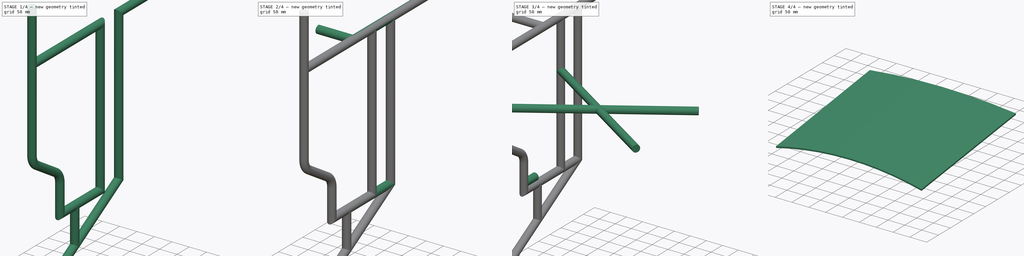
[diagram: build sequence overview — one tinted view per stage of 4, left to right]
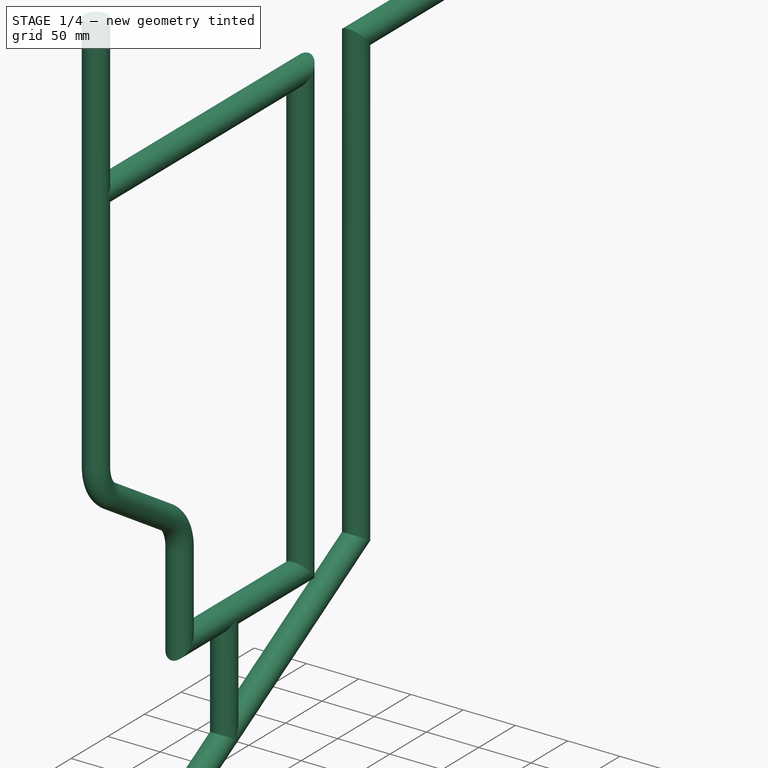
[diagram: stage 1 of 4 — iso view after this stage's code; geometry added in this stage tinted green]
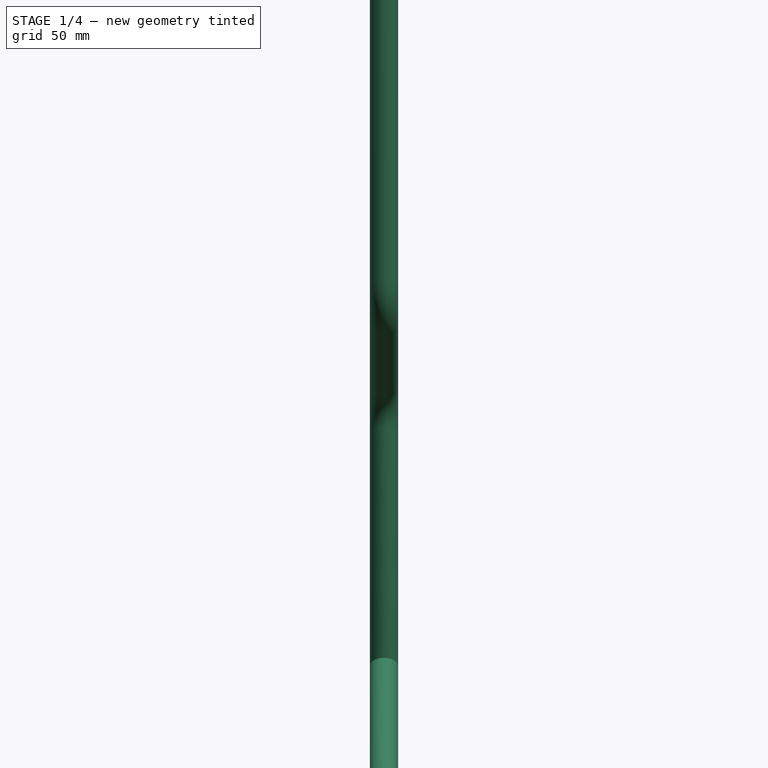
[diagram: stage 1 of 4 — front view after this stage's code; geometry added in this stage tinted green]
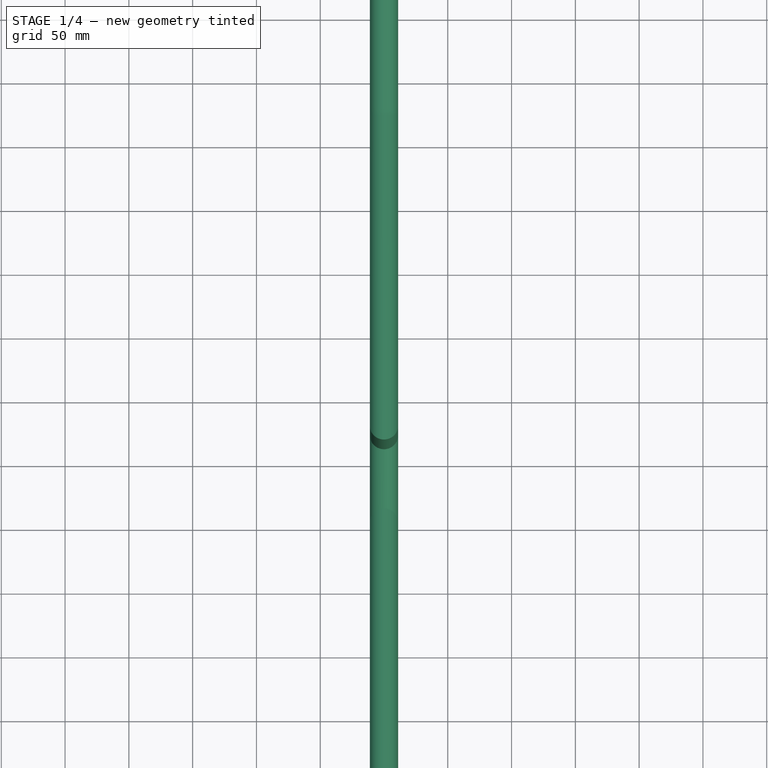
[diagram: stage 1 of 4 — top view after this stage's code; geometry added in this stage tinted green]
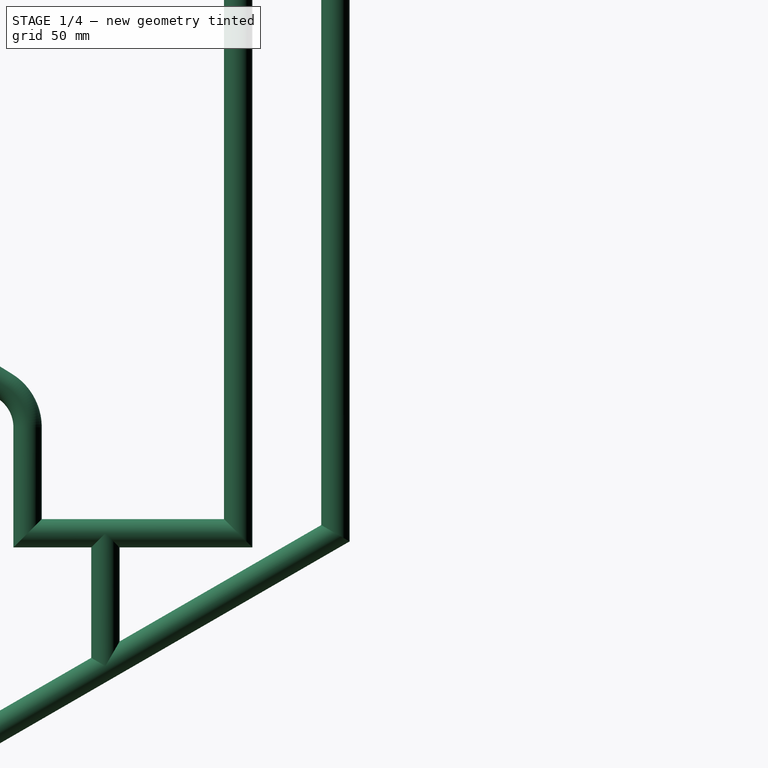
[diagram: stage 1 of 4 — right view after this stage's code; geometry added in this stage tinted green]
FCSTD DOCUMENT  (FreeCAD 0.21R33345 (Git))
Label: Backrest
License: All rights reserved
LicenseURL: http://en.wikipedia.org/wiki/All_rights_reserved
objects: Sketcher::SketchObject×11, PartDesign::Plane×8, PartDesign::AdditivePipe×7, PartDesign::SubShapeBinder×4, PartDesign::Pad×3, PartDesign::Body×2, PartDesign::Mirrored×1, PartDesign::AdditiveLoft×1
note: 48 computed .brp shape members not serialized (recipe doc carries the construction recipe); baked Part::Feature solids carry a one-line shape summary decoded from their .brp

FEATURE [Sketcher::SketchObject] Sketch
  FullyConstrained = true
  MapMode = 5
  Placement = pos=(0,0,0) rot=(0.57735,0.57735,0.57735;2.0944rad)
  Support = -> [YZ_Plane]
  sketch-geometry (25):
    g0: LineSegment StartX=0 StartY=0 StartZ=0 EndX=0 EndY=-88.9 EndZ=0
    g1: ArcOfCircle CenterX=-38.1 CenterY=-88.9 CenterZ=0 NormalX=0 NormalY=0 NormalZ=1 AngleXU=0 Radius=38.1 StartAngle=4.87984 EndAngle=6.28319
    g2: LineSegment StartX=-31.75 StartY=-126.467 StartZ=0 EndX=-182.018 EndY=-151.867 EndZ=0
    g3: ArcOfCircle CenterX=-188.368 CenterY=-114.3 CenterZ=0 NormalX=0 NormalY=0 NormalZ=1 AngleXU=0 Radius=38.1 StartAngle=4.71239 EndAngle=4.87984
    g4: LineSegment StartX=-188.368 StartY=-152.4 StartZ=0 EndX=-431.8 EndY=-152.4 EndZ=0
    g5: LineSegment StartX=-431.8 StartY=-152.4 StartZ=0 EndX=-431.8 EndY=-584.2 EndZ=0
    g6: LineSegment StartX=-431.8 StartY=-584.2 StartZ=0 EndX=-783.753 EndY=-787.4 EndZ=0
    g7: LineSegment StartX=-783.753 StartY=-787.4 StartZ=0 EndX=-731.629 EndY=-930.609 EndZ=0
    g8: LineSegment StartX=-431.8 StartY=-152.4 StartZ=0 EndX=-508 EndY=-152.4 EndZ=0
    g9: LineSegment StartX=-508 StartY=-152.4 StartZ=0 EndX=-508 EndY=-584.2 EndZ=0
    g10: LineSegment StartX=-431.8 StartY=-584.2 StartZ=0 EndX=-508 EndY=-584.2 EndZ=0
    g11: LineSegment StartX=-508 StartY=-152.4 StartZ=0 EndX=-787.4 EndY=-152.4 EndZ=0
    g12: LineSegment StartX=-787.4 StartY=-152.4 StartZ=0 EndX=-787.4 EndY=-387.868 EndZ=0
    g13: LineSegment StartX=-673.1 StartY=-501.132 StartZ=0 EndX=-673.1 EndY=-584.2 EndZ=0
    g14: LineSegment StartX=-612.091 StartY=-584.2 StartZ=0 EndX=-612.091 EndY=-688.291 EndZ=0
    g15: LineSegment StartX=-508 StartY=-584.2 StartZ=0 EndX=-612.091 EndY=-584.2 EndZ=0
    g16: LineSegment StartX=-612.091 StartY=-584.2 StartZ=0 EndX=-673.1 EndY=-584.2 EndZ=0
    g17: ArcOfCircle CenterX=-749.3 CenterY=-387.868 CenterZ=0 NormalX=0 NormalY=0 NormalZ=1 AngleXU=0 Radius=38.1 StartAngle=3.14159 EndAngle=4.15753
    g18: LineSegment StartX=-769.372 StartY=-420.252 StartZ=0 EndX=-691.128 EndY=-468.748 EndZ=0
    g19: ArcOfCircle CenterX=-711.2 CenterY=-501.132 CenterZ=0 NormalX=0 NormalY=0 NormalZ=1 AngleXU=0 Radius=38.1 StartAngle=0 EndAngle=1.01594
    g20: LineSegment StartX=-769.372 StartY=-420.252 StartZ=0 EndX=-787.4 EndY=-387.868 EndZ=0
    g21: LineSegment StartX=-673.1 StartY=-501.132 StartZ=0 EndX=-691.128 EndY=-468.748 EndZ=0
    g22: LineSegment StartX=-778.386 StartY=-404.06 StartZ=0 EndX=-782.589 EndY=-406.4 EndZ=0
    g23: LineSegment StartX=-682.114 StartY=-484.94 StartZ=0 EndX=-677.911 EndY=-482.6 EndZ=0
    g24: LineSegment StartX=-787.4 StartY=-152.4 StartZ=0 EndX=-787.4 EndY=0 EndZ=0
  constraints (67):
    c: Coincident(g-1,g0)
    c: PointOnObject(g0,g-2)
    c: Tangent(g0,g1) = 1.5708
    c: Tangent(g2,g3) = 1.5708
    c: Horizontal(g4)
    c: Coincident(g4,g5)
    c: Vertical(g5)
    c: Coincident(g5,g6)
    c: Coincident(g6,g7)
    c: Coincident(g8,g4)
    c: Horizontal(g8)
    c: Coincident(g9,g8)
    c: Vertical(g9)
    c: Coincident(g10,g5)
    c: Coincident(g10,g9)
    c: Horizontal(g10)
    c: Coincident(g11,g8)
    c: Horizontal(g11)
    c: Coincident(g11,g12)
    c: Vertical(g12)
    c: Vertical(g13)
    c: PointOnObject(g14,g6)
    c: Vertical(g14)
    c: Tangent(g3,g4) = 1.5708
    c: Tangent(g1,g2) = 1.5708
    c: DistanceY(g0,g0) = 88.9
    c: Radius(g1) = 38.1
    c: Distance(g2) = 152.4
    c: DistanceX(g8,g8) = 76.2
    c: Angle(g10,g6) = 0.523599
    c: Angle(g7,g6) = 1.74533
    c: Distance(g7) = 152.4
    c: Distance(g6) = 406.4
    c: DistanceX(g4,g0) = 431.8
    c: DistanceY(g3,g0) = 152.4
    c: Equal(g1,g3)
    c: DistanceY(g9,g8) = 431.8
    c: DistanceX(g13,g5) = 241.3
    c: Coincident(g15,g9)
    c: Coincident(g15,g14)
    c: Horizontal(g15)
    c: Coincident(g16,g14)
    c: Coincident(g16,g13)
    c: Horizontal(g16)
    c: Equal(g15,g14)
    c: Tangent(g12,g17) = -1.5708
    c: Tangent(g19,g18) = 1.5708
    c: Tangent(g19,g13) = 1.5708
    c: Tangent(g17,g18) = -1.5708
    c: Radius(g17) = 38.1
    c: Radius(g19) = 38.1
    c: Coincident(g20,g17)
    c: Coincident(g20,g12)
    c: Coincident(g21,g13)
    c: Coincident(g21,g18)
    c: PointOnObject(g22,g20)
    c: PointOnObject(g23,g21)
    c: PointOnObject(g22,g17)
    c: PointOnObject(g23,g19)
    c: Symmetric(g18,g13,g23)
    c: Symmetric(g12,g17,g22)
    c: DistanceY(g22,g11) = 254
    c: DistanceY(g23,g22) = 76.2
    c: DistanceX(g11,g0) = 787.4
    c: Coincident(g24,g11)
    c: Vertical(g24)
    c: PointOnObject(g24,g-1)
FEATURE [Sketcher::SketchObject] Sketch001
  ExternalGeometry = -> [Sketch]
  FullyConstrained = true
  MapMode = 5
  Support = -> [XY_Plane]
  sketch-geometry (1):
    g0: Circle CenterX=0 CenterY=-787.4 CenterZ=0 NormalX=0 NormalY=0 NormalZ=1 AngleXU=0 Radius=11.1125
  constraints (2):
    c: Coincident(g0,g-3)
    c: Diameter(g0) = 22.225
FEATURE [PartDesign::AdditivePipe] AdditivePipe
  AuxilleryCurvelinear = true
  AuxillerySpineTangent = false
  Binormal = (0,0,0)
  Mode = 0
  Profile = -> Sketch001
  Refine = true
  Spine = -> Sketch [Edge16,Edge15,Edge14,Edge13,Edge12,Edge11,Edge10,Edge9]
  SpineTangent = false
  Transformation = 0
  Transition = 1
FEATURE [PartDesign::AdditivePipe] AdditivePipe001
  AuxilleryCurvelinear = true
  AuxillerySpineTangent = false
  BaseFeature = -> AdditivePipe
  Binormal = (0,0,0)
  Mode = 0
  Profile = -> Sketch001
  Refine = true
  Spine = -> Sketch [Edge16,Edge17,Edge18,Edge19]
  SpineTangent = false
  Transformation = 0
  Transition = 1
FEATURE [Sketcher::SketchObject] Sketch002
  FullyConstrained = true
  MapMode = 5
  Support = -> [XY_Plane]
  sketch-geometry (1):
    g0: Circle CenterX=0 CenterY=0 CenterZ=0 NormalX=0 NormalY=0 NormalZ=1 AngleXU=0 Radius=11.1125
  constraints (2):
    c: Coincident(g0,g-1)
    c: Diameter(g0) = 22.225
FEATURE [PartDesign::AdditivePipe] AdditivePipe002
  AuxilleryCurvelinear = true
  AuxillerySpineTangent = false
  BaseFeature = -> AdditivePipe001
  Binormal = (0,0,0)
  Mode = 0
  Profile = -> Sketch002
  Refine = true
  Spine = -> Sketch [Edge1,Edge2,Edge3,Edge4,Edge5,Edge6,Edge7,Edge8]
  SpineTangent = false
  Transformation = 0
  Transition = 1
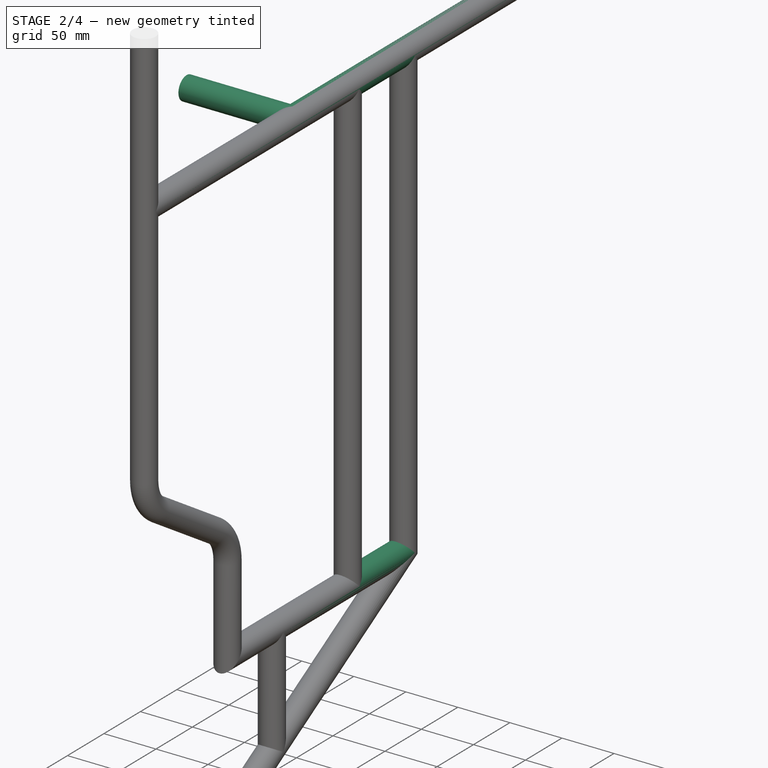
[diagram: stage 2 of 4 — iso view after this stage's code; geometry added in this stage tinted green]
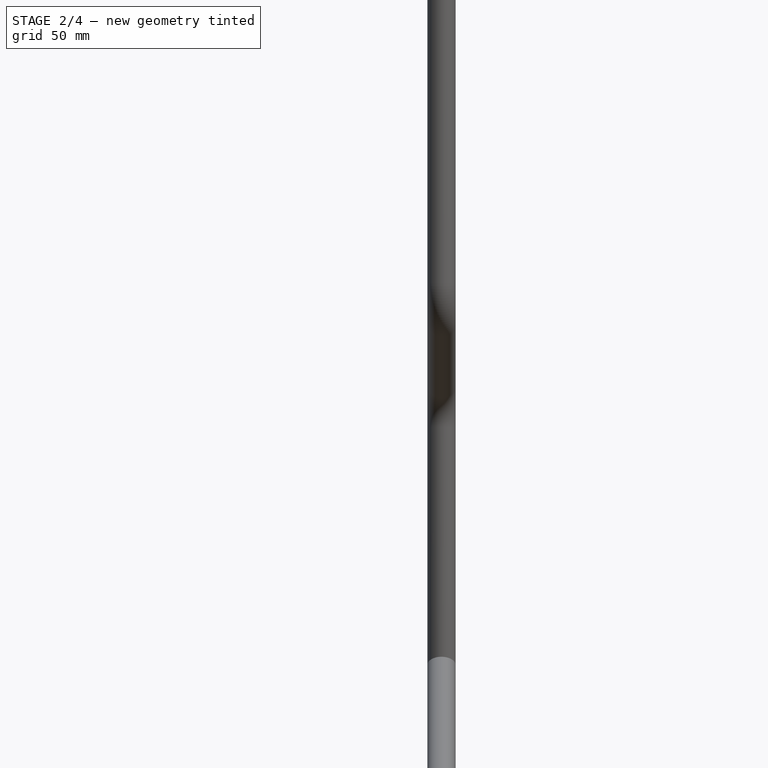
[diagram: stage 2 of 4 — front view after this stage's code; geometry added in this stage tinted green]
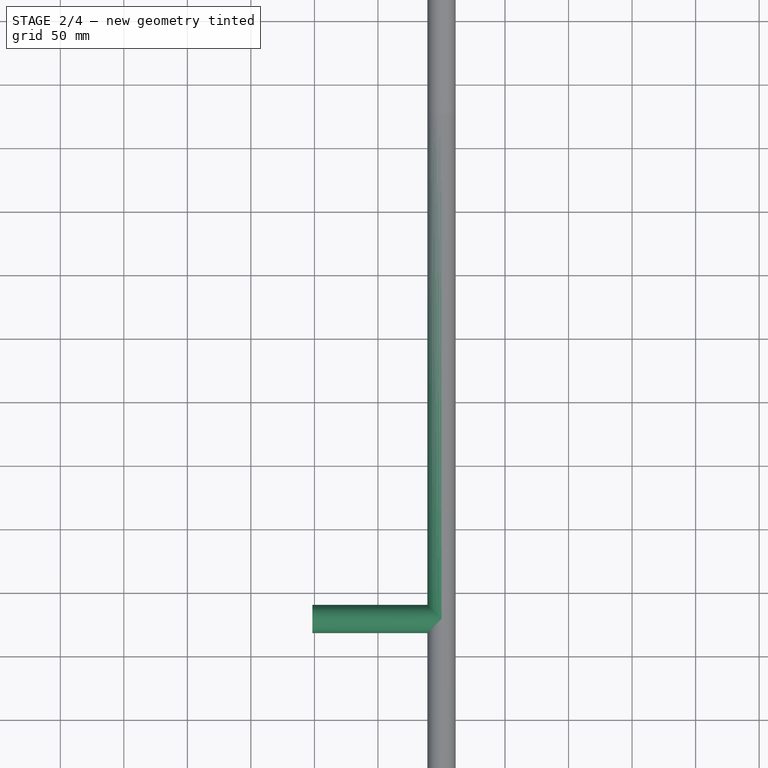
[diagram: stage 2 of 4 — top view after this stage's code; geometry added in this stage tinted green]
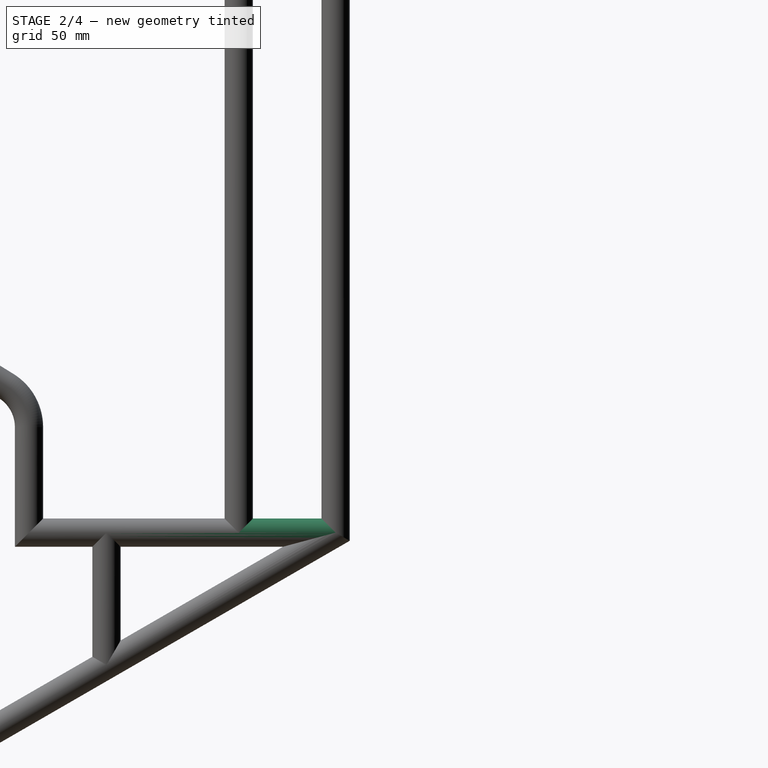
[diagram: stage 2 of 4 — right view after this stage's code; geometry added in this stage tinted green]
FEATURE [PartDesign::AdditivePipe] AdditivePipe003
  AuxilleryCurvelinear = true
  AuxillerySpineTangent = false
  BaseFeature = -> AdditivePipe002
  Binormal = (0,0,0)
  Mode = 0
  Profile = -> Sketch001
  Refine = true
  Spine = -> Sketch [Edge16,Edge17,Edge21]
  SpineTangent = false
  Transformation = 0
  Transition = 1
FEATURE [PartDesign::AdditivePipe] AdditivePipe004
  AuxilleryCurvelinear = true
  AuxillerySpineTangent = false
  BaseFeature = -> AdditivePipe003
  Binormal = (0,0,0)
  Mode = 0
  Profile = -> Sketch001
  Refine = true
  Spine = -> Sketch [Edge16,Edge15,Edge14,Edge13,Edge12,Edge11,Edge10,Edge19,Edge20]
  SpineTangent = false
  Transformation = 0
  Transition = 1
FEATURE [Sketcher::SketchObject] Sketch003
  ExternalGeometry = -> [AdditivePipe004]
  FullyConstrained = true
  MapMode = 5
  Placement = pos=(0,0,0) rot=(0.57735,0.57735,0.57735;2.0944rad)
  Support = -> [YZ_Plane]
  sketch-geometry (3):
    g0: LineSegment StartX=-508 StartY=-152.4 StartZ=0 EndX=-787.4 EndY=-152.4 EndZ=0
    g1: Circle CenterX=-584.2 CenterY=-152.4 CenterZ=0 NormalX=0 NormalY=0 NormalZ=1 AngleXU=0 Radius=11.1125
    g2: Circle CenterX=-584.2 CenterY=-152.4 CenterZ=0 NormalX=0 NormalY=0 NormalZ=1 AngleXU=0 Radius=9.525
  constraints (7):
    c: Coincident(g0,g-3)
    c: Coincident(g0,g-4)
    c: PointOnObject(g1,g0)
    c: Coincident(g2,g1)
    c: Diameter(g2) = 19.05
    c: Diameter(g1) = 22.225
    c: DistanceX(g0,g1) = 203.2
FEATURE [PartDesign::Pad] Pad
  BaseFeature = -> AdditivePipe004
  Direction = (1,-2e-16,3e-16)
  Length = 101.6
  Length2 = 10
  Profile = -> Sketch003
  ReferenceAxis = -> Sketch003 [N_Axis]
  Refine = true
  Reversed = true
  Type = 0
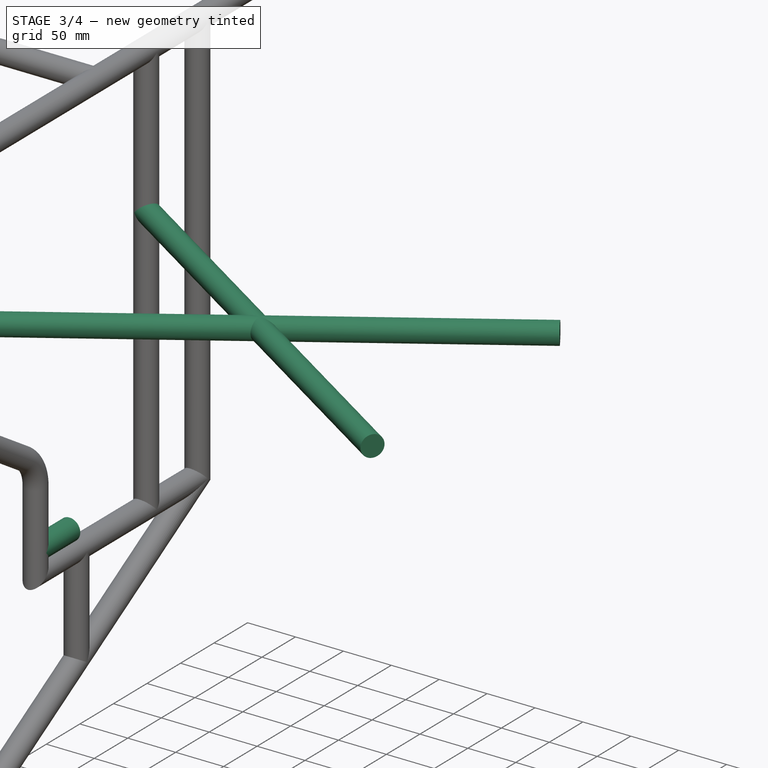
[diagram: stage 3 of 4 — iso view after this stage's code; geometry added in this stage tinted green]
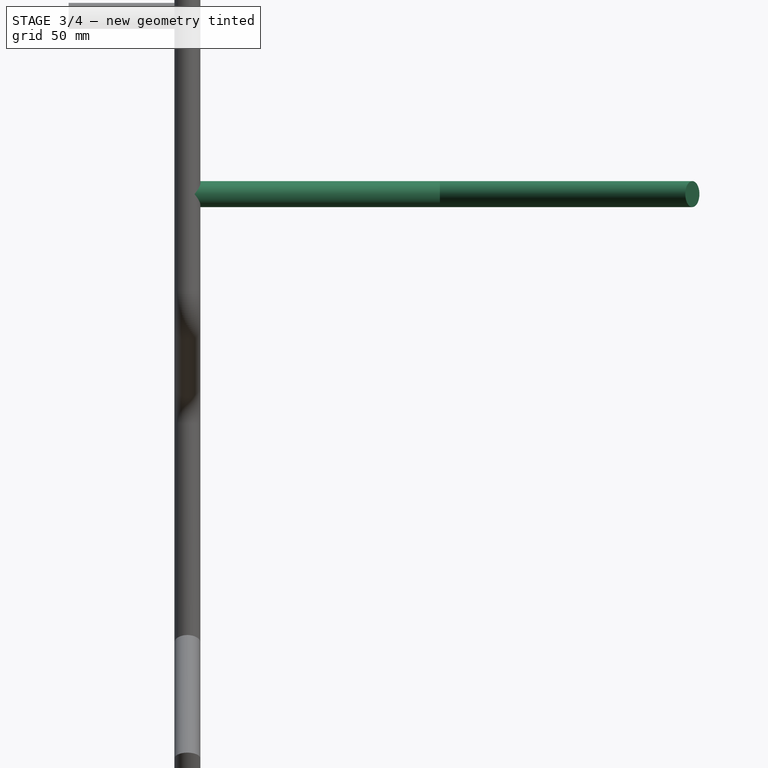
[diagram: stage 3 of 4 — front view after this stage's code; geometry added in this stage tinted green]
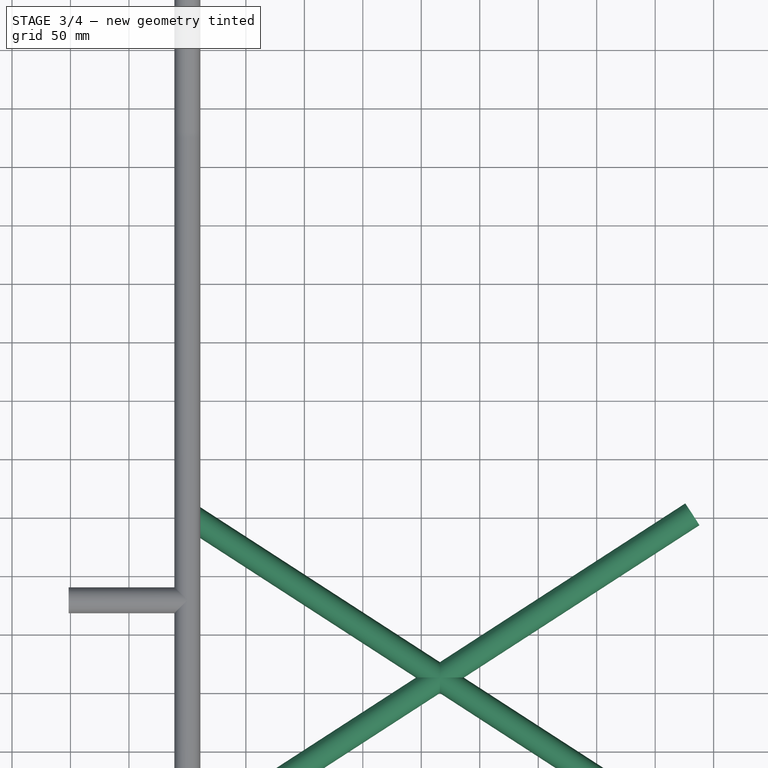
[diagram: stage 3 of 4 — top view after this stage's code; geometry added in this stage tinted green]
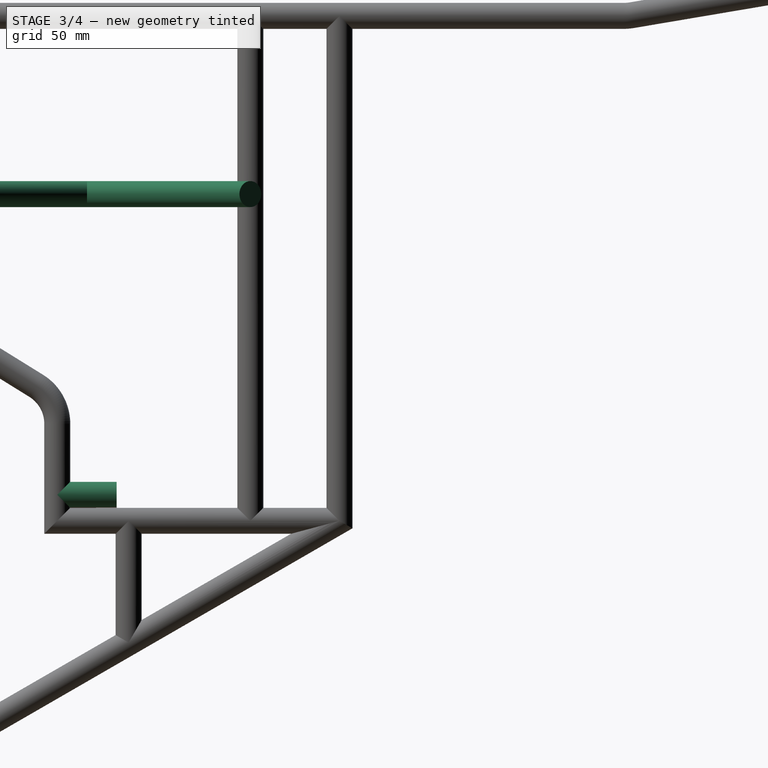
[diagram: stage 3 of 4 — right view after this stage's code; geometry added in this stage tinted green]
FEATURE [PartDesign::Plane] DatumPlane
  AttachmentOffset = pos=(0,0,215.9) rot=(0,0,1;0rad)
  Length = 1001.28
  MapMode = 5
  Placement = pos=(215.9,-4.79e-14,4.79e-14) rot=(0.57735,0.57735,0.57735;2.0944rad)
  ResizeMode = 0
  Support = -> [YZ_Plane]
  Width = 1137.15
FEATURE [PartDesign::Plane] DatumPlane001
  AttachmentOffset = pos=(0,0,-304.8) rot=(0,0,1;0rad)
  Length = 779.628
  MapMode = 5
  Placement = pos=(0,0,-304.8) rot=(0,0,1;0rad)
  ResizeMode = 0
  Support = -> [XY_Plane]
  Width = 968.14
FEATURE [Sketcher::SketchObject] Sketch004
  ExternalGeometry = -> [Pad]
  FullyConstrained = true
  MapMode = 5
  Placement = pos=(0,0,-304.8) rot=(0,0,1;0rad)
  Support = -> [DatumPlane001]
  sketch-geometry (2):
    g0: LineSegment StartX=0 StartY=-508 StartZ=0 EndX=431.8 EndY=-787.4 EndZ=0
    g1: LineSegment StartX=0 StartY=-787.4 StartZ=0 EndX=431.8 EndY=-508 EndZ=0
  constraints (7):
    c: PointOnObject(g0,g-2)
    c: Horizontal(g-4,g0)
    c: DistanceY(g-4,g0) = 279.4
    c: Coincident(g1,g-4)
    c: Vertical(g1,g0)
    c: Horizontal(g0,g1)
    c: DistanceX(g0,g1) = 431.8
FEATURE [PartDesign::Plane] DatumPlane002
  AttachmentOffset = pos=(0,0,-514.31) rot=(0,0,1;0rad)
  Length = 1235.79
  MapMode = 7
  Placement = pos=(431.799,-787.4,-304.8) rot=(-0.359036,0.65996,0.65996;3.831rad)
  ResizeMode = 0
  Support = -> [Sketch004]
  Width = 1158.81
FEATURE [PartDesign::Plane] DatumPlane003
  AttachmentOffset = pos=(0,0,-514.31) rot=(0,0,1;0rad)
  Length = 1235.79
  MapMode = 7
  Placement = pos=(431.799,-508,-304.8) rot=(0.792571,-0.43118,-0.43118;1.8012rad)
  ResizeMode = 0
  Support = -> [Sketch004]
  Width = 1158.81
FEATURE [Sketcher::SketchObject] Sketch005
  FullyConstrained = true
  MapMode = 5
  Placement = pos=(431.799,-508,-304.8) rot=(0.792571,-0.43118,-0.43118;1.8012rad)
  Support = -> [DatumPlane003]
  sketch-geometry (1):
    g0: Circle CenterX=0 CenterY=0 CenterZ=0 NormalX=0 NormalY=0 NormalZ=1 AngleXU=0 Radius=11.1125
  constraints (2):
    c: Coincident(g0,g-1)
    c: Diameter(g0) = 22.225
FEATURE [Sketcher::SketchObject] Sketch006
  FullyConstrained = true
  MapMode = 5
  Placement = pos=(431.799,-787.4,-304.8) rot=(-0.359036,0.65996,0.65996;3.831rad)
  Support = -> [DatumPlane002]
  sketch-geometry (1):
    g0: Circle CenterX=0 CenterY=0 CenterZ=0 NormalX=0 NormalY=0 NormalZ=1 AngleXU=0 Radius=11.1125
  constraints (2):
    c: Coincident(g0,g-1)
    c: Diameter(g0) = 22.225
FEATURE [PartDesign::AdditivePipe] AdditivePipe005
  AuxilleryCurvelinear = true
  AuxillerySpineTangent = false
  BaseFeature = -> Pad
  Binormal = (0,0,0)
  Mode = 0
  Profile = -> Sketch006
  Refine = true
  Spine = -> Sketch004 [Edge1]
  SpineTangent = false
  Transformation = 0
  Transition = 0
FEATURE [PartDesign::AdditivePipe] AdditivePipe006
  AuxilleryCurvelinear = true
  AuxillerySpineTangent = false
  BaseFeature = -> AdditivePipe005
  Binormal = (0,0,0)
  Mode = 0
  Profile = -> Sketch005
  Refine = true
  Spine = -> Sketch004 [Edge2]
  SpineTangent = false
  Transformation = 0
  Transition = 0
FEATURE [PartDesign::Plane] DatumPlane004
  AttachmentOffset = pos=(0,0,-61.01) rot=(0,0,1;0rad)
  Length = 791.104
  MapMode = 7
  Placement = pos=(-1.97e-14,-673.101,-584.2) rot=(0,0.707107,0.707107;3.14159rad)
  ResizeMode = 0
  Support = -> [Sketch]
  Width = 1115.49
FEATURE [Sketcher::SketchObject] Sketch007
  FullyConstrained = true
  MapMode = 5
  Placement = pos=(-1.97e-14,-673.101,-584.2) rot=(0,0.707107,0.707107;3.14159rad)
  Support = -> [DatumPlane004]
  sketch-geometry (3):
    g0: Circle CenterX=0 CenterY=0 CenterZ=0 NormalX=0 NormalY=0 NormalZ=1 AngleXU=0 Radius=11.1125
    g1: Circle CenterX=0 CenterY=22.225 CenterZ=0 NormalX=0 NormalY=0 NormalZ=1 AngleXU=0 Radius=9.525
    g2: Circle CenterX=0 CenterY=22.225 CenterZ=0 NormalX=0 NormalY=0 NormalZ=1 AngleXU=0 Radius=11.1125
  constraints (7):
    c: Coincident(g0,g-1)
    c: Diameter(g0) = 22.225
    c: PointOnObject(g1,g-2)
    c: Coincident(g2,g1)
    c: Diameter(g2) = 22.225
    c: Diameter(g1) = 19.05
    c: Tangent(g2,g0)
FEATURE [PartDesign::Pad] Pad001
  BaseFeature = -> AdditivePipe006
  Direction = (2e-16,1,-2e-16)
  Length = 50.8
  Length2 = 10
  Profile = -> Sketch007
  ReferenceAxis = -> Sketch007 [N_Axis]
  Refine = true
  Type = 0
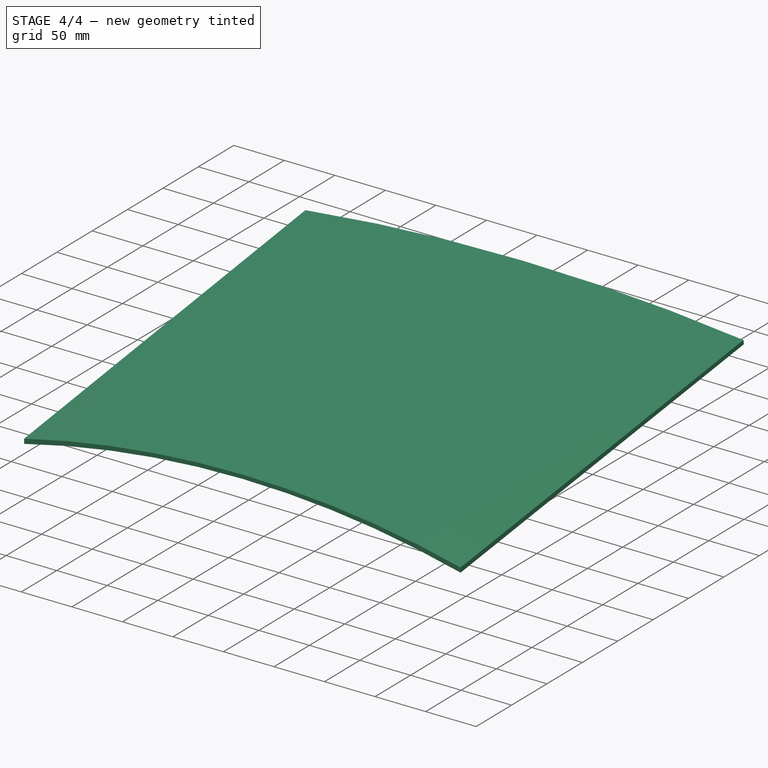
[diagram: stage 4 of 4 — iso view after this stage's code; geometry added in this stage tinted green]
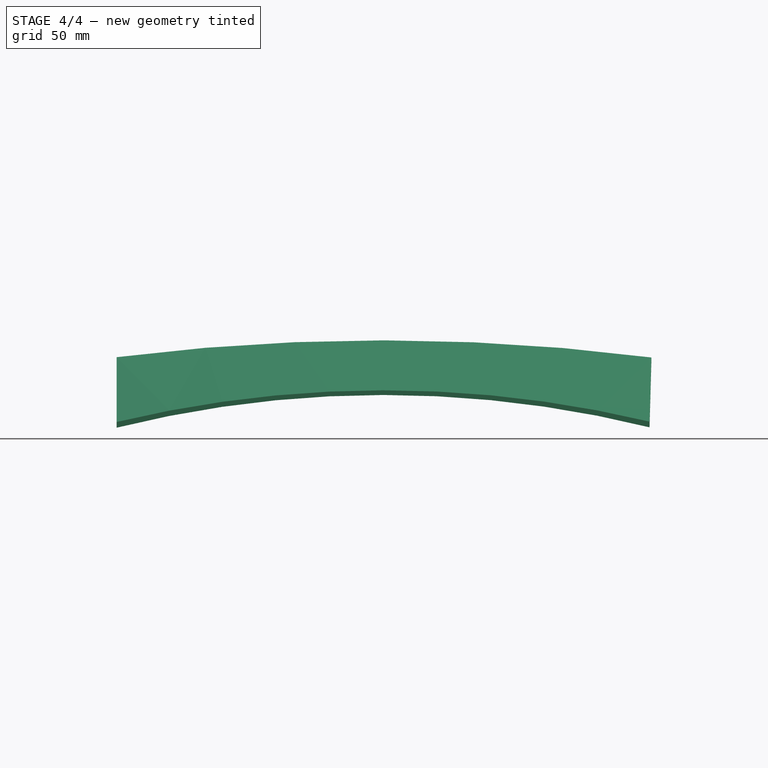
[diagram: stage 4 of 4 — front view after this stage's code; geometry added in this stage tinted green]
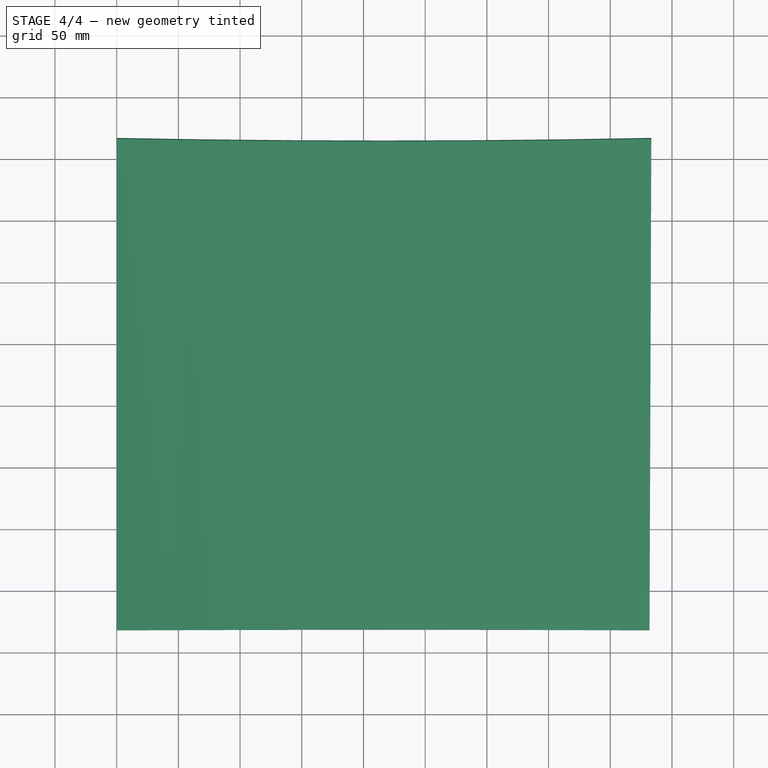
[diagram: stage 4 of 4 — top view after this stage's code; geometry added in this stage tinted green]
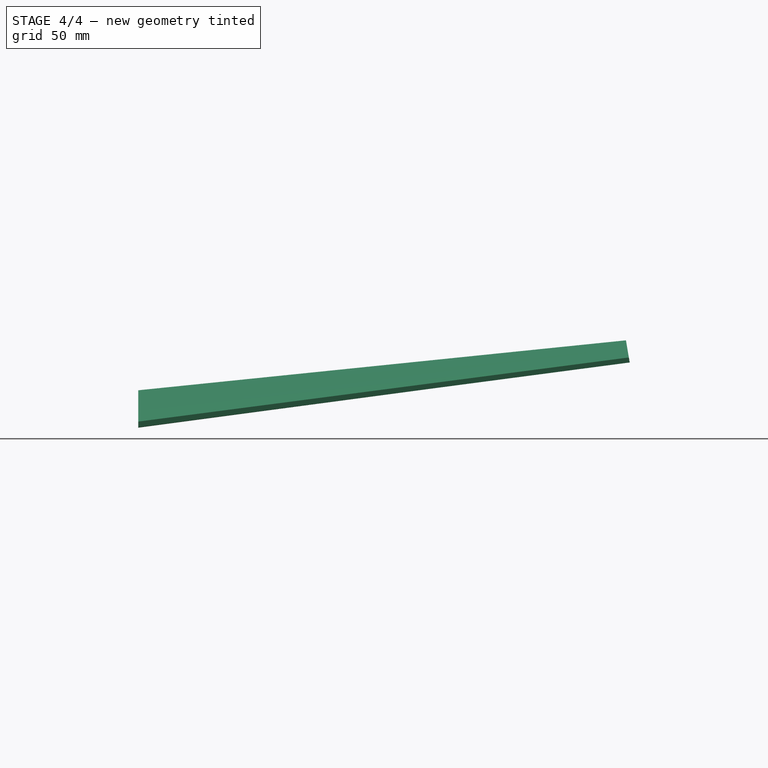
[diagram: stage 4 of 4 — right view after this stage's code; geometry added in this stage tinted green]
FEATURE [PartDesign::Plane] DatumPlane005
  AttachmentOffset = pos=(0,0,0) rot=(1,0,0;1.5708rad)
  Length = 791.104
  MapMode = 7
  Placement = pos=(-7.9e-14,-508,-152.4) rot=(1,0,0;1.5708rad)
  ResizeMode = 0
  Support = -> [Sketch]
  Width = 1115.49
FEATURE [PartDesign::Mirrored] Mirrored
  BaseFeature = -> Pad001
  MirrorPlane = -> DatumPlane
  Originals = -> [AdditivePipe,AdditivePipe001,AdditivePipe002,AdditivePipe003,AdditivePipe004,Pad,AdditivePipe005,AdditivePipe006,Pad001]
  Refine = true
FEATURE [Sketcher::SketchObject] Sketch008
  ExternalGeometry = -> [Mirrored]
  FullyConstrained = false
  MapMode = 5
  Placement = pos=(-7.9e-14,-508,-152.4) rot=(1,0,0;1.5708rad)
  Support = -> [DatumPlane005]
  sketch-geometry (20):
    g0: Circle CenterX=431.8 CenterY=0.532893 CenterZ=0 NormalX=0 NormalY=0 NormalZ=1 AngleXU=0 Radius=11.1125
    g1: Circle CenterX=453.225 CenterY=0 CenterZ=0 NormalX=0 NormalY=0 NormalZ=1 AngleXU=0 Radius=11.1125
    g2: Circle CenterX=453.225 CenterY=0 CenterZ=0 NormalX=0 NormalY=0 NormalZ=1 AngleXU=0 Radius=9.525
    g3: LineSegment StartX=215.9 StartY=-141.287 StartZ=0 EndX=215.9 EndY=100 EndZ=0
    g4: ArcOfCircle CenterX=-7.9e-14 CenterY=-431.8 CenterZ=0 NormalX=0 NormalY=0 NormalZ=1 AngleXU=0 Radius=11.1125 StartAngle=0 EndAngle=3.14159
    g5: LineSegment StartX=-7.9e-14 StartY=-431.8 StartZ=0 EndX=11.1125 EndY=-431.8 EndZ=0
    g6: Circle CenterX=-21.4313 CenterY=-431.8 CenterZ=0 NormalX=0 NormalY=0 NormalZ=1 AngleXU=0 Radius=11.1125
    g7: Circle CenterX=-21.4313 CenterY=-431.8 CenterZ=0 NormalX=0 NormalY=0 NormalZ=1 AngleXU=0 Radius=9.525
    g8: Circle CenterX=-21.4313 CenterY=-431.8 CenterZ=0 NormalX=0 NormalY=0 NormalZ=1 AngleXU=0 Radius=10.3188
    g9: LineSegment StartX=-21.4313 StartY=-431.8 StartZ=0 EndX=-32.5438 EndY=-431.8 EndZ=0
    g10: GeomPoint X=-30.9563 Y=-431.8 Z=0
    g11: GeomPoint X=-31.75 Y=-431.8 Z=0
    g12: Circle CenterX=453.231 CenterY=-431.8 CenterZ=0 NormalX=0 NormalY=0 NormalZ=1 AngleXU=0 Radius=9.525
    g13: Circle CenterX=453.231 CenterY=-431.8 CenterZ=0 NormalX=0 NormalY=0 NormalZ=1 AngleXU=0 Radius=11.1125
    g14: Circle CenterX=453.225 CenterY=0 CenterZ=0 NormalX=0 NormalY=0 NormalZ=1 AngleXU=0 Radius=10.3187
    g15: LineSegment StartX=453.225 StartY=0 StartZ=0 EndX=464.337 EndY=0 EndZ=0
    g16: GeomPoint X=462.75 Y=0 Z=0
    g17: GeomPoint X=463.543 Y=0 Z=0
    g18: Circle CenterX=-21.4246 CenterY=0 CenterZ=0 NormalX=0 NormalY=0 NormalZ=1 AngleXU=0 Radius=11.1125
    g19: Circle CenterX=-21.4246 CenterY=0 CenterZ=0 NormalX=0 NormalY=0 NormalZ=1 AngleXU=0 Radius=9.525
  constraints (42):
    c: Coincident(g0,g-3)
    c: Diameter(g0) = 22.225
    c: PointOnObject(g1,g-1)
    c: Coincident(g2,g1)
    c: Diameter(g1) = 22.225
    c: Diameter(g2) = 19.05
    c: PointOnObject(g3,g-4)
    c: Vertical(g3)
    c: PointOnObject(g4,g-5)
    c: PointOnObject(g4,g-5)
    c: Coincident(g4,g-5)
    c: Coincident(g5,g4)
    c: Horizontal(g5)
    c: Coincident(g4,g5)
    c: Coincident(g7,g6)
    c: Diameter(g6) = 22.225
    c: Diameter(g7) = 19.05
    c: Horizontal(g4,g6)
    c: Coincident(g8,g6)
    c: Coincident(g9,g6)
    c: PointOnObject(g9,g6)
    c: Horizontal(g9)
    c: PointOnObject(g10,g7)
    c: PointOnObject(g10,g9)
    c: PointOnObject(g11,g8)
    c: Symmetric(g10,g9,g11)
    c: Tangent(g8,g4)
    c: Coincident(g12,g13)
    c: Diameter(g13) = 22.225
    c: Diameter(g12) = 19.05
    c: Coincident(g14,g1)
    c: Coincident(g15,g1)
    c: PointOnObject(g15,g1)
    c: Horizontal(g15)
    c: PointOnObject(g16,g2)
    c: PointOnObject(g16,g15)
    c: PointOnObject(g17,g14)
    c: Symmetric(g16,g15,g17)
    c: Tangent(g14,g0)
    c: Coincident(g19,g18)
    c: Diameter(g18) = 22.225
    c: Diameter(g19) = 19.05
FEATURE [PartDesign::Pad] Pad002
  BaseFeature = -> Mirrored
  Direction = (0,-1,2e-16)
  Length = 38.1
  Length2 = 10
  Profile = -> Sketch008
  ReferenceAxis = -> Sketch008 [N_Axis]
  Refine = true
  Reversed = true
  Type = 0
FEATURE [PartDesign::Body] Body
  Group = -> [Sketch,Sketch001,AdditivePipe,AdditivePipe001,Sketch002,AdditivePipe002,AdditivePipe003,AdditivePipe004,Sketch003,Pad,DatumPlane,DatumPlane001,Sketch004,DatumPlane002,DatumPlane003,Sketch005,Sketch006,AdditivePipe005,AdditivePipe006,DatumPlane004,Sketch007,Pad001,DatumPlane005,Mirrored,Sketch008,Pad002]
  Origin = -> Origin
  Tip = -> Pad002
FEATURE [PartDesign::Plane] DatumPlane006
  AttachmentOffset = pos=(0,0,431.8) rot=(0,0,1;0rad)
  Length = 517.811
  MapMode = 5
  Placement = pos=(0,-431.8,-9.59e-14) rot=(1,0,0;1.5708rad)
  ResizeMode = 0
  Support = -> [XZ_Plane001]
  Width = 252.982
FEATURE [PartDesign::SubShapeBinder] Binder
  BindCopyOnChange = 0
  BindMode = 0
  ClaimChildren = false
  Context = -> Body001 [Binder.]
  Fuse = false
  MakeFace = true
  OffsetFill = false
  OffsetIntersection = false
  OffsetJoinType = 0
  OffsetOpenResult = false
  PartialLoad = false
  Refine = true
  Relative = true
  Support = -> [Body[Pad002.Edge164]]
  _Version = 2
FEATURE [PartDesign::Plane] DatumPlane007
  Length = 528.206
  MapMode = 5
  Placement = pos=(-1.1e-14,-51.6511,-8.73063) rot=(0,0.645497,0.763763;3.14159rad)
  ResizeMode = 0
  Support = -> [Binder]
  Width = 336.805
FEATURE [PartDesign::SubShapeBinder] Binder001
  BindCopyOnChange = 0
  BindMode = 0
  ClaimChildren = false
  Context = -> Body001 [Binder001.]
  Fuse = false
  MakeFace = true
  OffsetFill = false
  OffsetIntersection = false
  OffsetJoinType = 0
  OffsetOpenResult = false
  PartialLoad = false
  Refine = true
  Relative = true
  Support = -> [Body[Pad002.Edge74]]
  _Version = 2
FEATURE [PartDesign::SubShapeBinder] Binder002
  BindCopyOnChange = 0
  BindMode = 0
  ClaimChildren = false
  Context = -> Body001 [Binder002.]
  Fuse = false
  MakeFace = true
  OffsetFill = false
  OffsetIntersection = false
  OffsetJoinType = 0
  OffsetOpenResult = false
  PartialLoad = false
  Refine = true
  Relative = true
  Support = -> [Body[Pad002.Edge198]]
  _Version = 2
FEATURE [Sketcher::SketchObject] Sketch010
  ExternalGeometry = -> [Binder001,Binder002]
  FullyConstrained = false
  MapMode = 5
  Placement = pos=(0,-431.8,-9.59e-14) rot=(1,0,0;1.5708rad)
  Support = -> [DatumPlane006]
  sketch-geometry (13):
    g0: LineSegment StartX=431.8 StartY=-152.4 StartZ=0 EndX=-5.68e-14 EndY=-152.4 EndZ=0
    g1: ArcOfCircle CenterX=215.9 CenterY=-1057.27 CenterZ=0 NormalX=0 NormalY=0 NormalZ=1 AngleXU=0 Radius=930.275 StartAngle=1.33658 EndAngle=1.80501
    g2: ArcOfCircle CenterX=215.922 CenterY=-1083.09 CenterZ=0 NormalX=0 NormalY=0 NormalZ=1 AngleXU=0 Radius=959.905 StartAngle=1.34396 EndAngle=1.79768
    g3: LineSegment StartX=215.9 StartY=-123.19 StartZ=0 EndX=215.9 EndY=-127 EndZ=0
    g4: LineSegment StartX=431.8 StartY=-152.4 StartZ=0 EndX=431.8 EndY=-147.78 EndZ=0
    g5: LineSegment StartX=-2.84e-14 StartY=-152.4 StartZ=0 EndX=-2.84e-14 EndY=-147.79 EndZ=0
    g6: LineSegment StartX=215.9 StartY=-127 StartZ=0 EndX=215.9 EndY=-152.4 EndZ=0
    g7: LineSegment StartX=0 StartY=-168.436 StartZ=0 EndX=0 EndY=-163.826 EndZ=0
    g8: ArcOfCircle CenterX=216.553 CenterY=-1063.57 CenterZ=0 NormalX=0 NormalY=0 NormalZ=1 AngleXU=0 Radius=925.44 StartAngle=1.33606 EndAngle=1.80699
    g9: ArcOfCircle CenterX=216.512 CenterY=-1039.89 CenterZ=0 NormalX=0 NormalY=0 NormalZ=1 AngleXU=0 Radius=897.95 StartAngle=1.32868 EndAngle=1.81431
    g10: LineSegment StartX=431.8 StartY=-168.132 StartZ=0 EndX=431.8 EndY=-163.512 EndZ=0
    g11: LineSegment StartX=216.745 StartY=-138.133 StartZ=0 EndX=216.745 EndY=-141.943 EndZ=0
    g12: LineSegment StartX=431.8 StartY=-147.78 StartZ=0 EndX=431.8 EndY=-120 EndZ=0
  constraints (40):
    c: Coincident(g0,g-3)
    c: Coincident(g0,g-4)
    c: Coincident(g1,g0)
    c: Coincident(g1,g0)
    c: PointOnObject(g3,g2)
    c: PointOnObject(g3,g1)
    c: Symmetric(g1,g1,g3)
    c: DistanceY(g3,g3) = 3.81
    c: Coincident(g4,g1)
    c: Vertical(g4)
    c: Coincident(g2,g4)
    c: Coincident(g5,g1)
    c: Vertical(g5)
    c: Coincident(g2,g5)
    c: Distance(g5) = 4.61
    c: Distance(g4) = 4.62
    c: Coincident(g6,g3)
    c: PointOnObject(g6,g0)
    c: Vertical(g6)
    c: DistanceY(g6,g6) = 25.4
    c: Coincident(g10,g9)
    c: Vertical(g10)
    c: Coincident(g8,g10)
    c: Coincident(g7,g9)
    c: Vertical(g7)
    c: Coincident(g8,g7)
    c: Distance(g7) = 4.61
    c: Distance(g10) = 4.62
    c: PointOnObject(g11,g8)
    c: PointOnObject(g11,g9)
    c: Vertical(g11)
    c: Distance(g11) = 3.81
    c: PointOnObject(g7,g-2)
    c: Coincident(g12,g2)
    c: Vertical(g12)
    c: PointOnObject(g8,g12)
    c: Tangent(g8,g-4)
    c: Radius(g8) = 925.44
    c: Radius(g9) = 897.95
    c: PointOnObject(g8,g-3)
FEATURE [PartDesign::SubShapeBinder] Binder003
  BindCopyOnChange = 0
  BindMode = 0
  ClaimChildren = false
  Context = -> Body001 [Binder003.]
  Fuse = false
  MakeFace = true
  OffsetFill = false
  OffsetIntersection = false
  OffsetJoinType = 0
  OffsetOpenResult = false
  PartialLoad = false
  Refine = true
  Relative = true
  Support = -> [Body[Pad002.Edge255]]
  _Version = 2
FEATURE [Sketcher::SketchObject] Sketch011
  ExternalGeometry = -> [Binder003,Binder]
  FullyConstrained = true
  MapMode = 5
  Placement = pos=(-1.1e-14,-51.6511,-8.73063) rot=(0,0.645497,0.763763;3.14159rad)
  Support = -> [DatumPlane007]
  sketch-geometry (7):
    g0: ArcOfCircle CenterX=-215.9 CenterY=-1743.51 CenterZ=0 NormalX=0 NormalY=0 NormalZ=1 AngleXU=0 Radius=1649.5 StartAngle=1.43953 EndAngle=1.70296
    g1: LineSegment StartX=-3.2e-14 StartY=-119.407 StartZ=0 EndX=-431.8 EndY=-119.407 EndZ=0
    g2: LineSegment StartX=-215.9 StartY=-119.407 StartZ=0 EndX=-215.9 EndY=-94.0066 EndZ=0
    g3: ArcOfCircle CenterX=-215.689 CenterY=-1778.97 CenterZ=0 NormalX=0 NormalY=0 NormalZ=1 AngleXU=0 Radius=1688.78 StartAngle=1.44273 EndAngle=1.69999
    g4: LineSegment StartX=-215.9 StartY=-94.0066 StartZ=0 EndX=-215.9 EndY=-90.1966 EndZ=0
    g5: LineSegment StartX=1.137e-13 StartY=-108.197 StartZ=0 EndX=1.137e-13 EndY=-104.027 EndZ=0
    g6: LineSegment StartX=-433.264 StartY=-108.391 StartZ=0 EndX=-433.264 EndY=-104.271 EndZ=0
  constraints (21):
    c: PointOnObject(g0,g-2)
    c: Coincident(g1,g-3)
    c: Coincident(g1,g-4)
    c: Tangent(g0,g-3)
    c: Tangent(g0,g-4) = -1.5708
    c: PointOnObject(g2,g1)
    c: PointOnObject(g2,g0)
    c: Symmetric(g1,g1,g2)
    c: Coincident(g4,g2)
    c: PointOnObject(g4,g3)
    c: Vertical(g4)
    c: Distance(g4) = 3.81
    c: Vertical(g5)
    c: Coincident(g3,g5)
    c: Distance(g5) = 4.17
    c: Coincident(g6,g0)
    c: Vertical(g6)
    c: Distance(g6) = 4.12
    c: Coincident(g3,g6)
    c: Coincident(g0,g5)
    c: DistanceY(g2,g2) = 25.4
FEATURE [PartDesign::AdditiveLoft] AdditiveLoft
  Closed = false
  Placement = pos=(0,-431.8,-9.6e-14) rot=(1,0,0;1.5708rad)
  Profile = -> Sketch010
  Refine = true
  Ruled = false
  Sections = -> [Sketch011]
FEATURE [PartDesign::Body] Body001
  Group = -> [DatumPlane006,Binder,DatumPlane007,Binder001,Binder002,Sketch010,Binder003,Sketch011,AdditiveLoft]
  Origin = -> Origin001
  Tip = -> AdditiveLoft
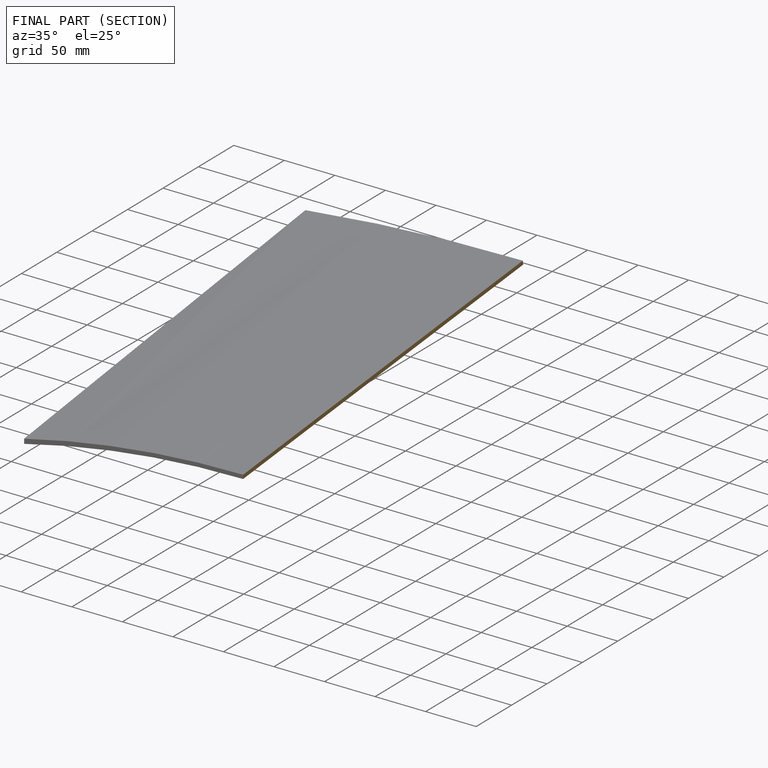
[diagram: finished part — half-section view (interior)]
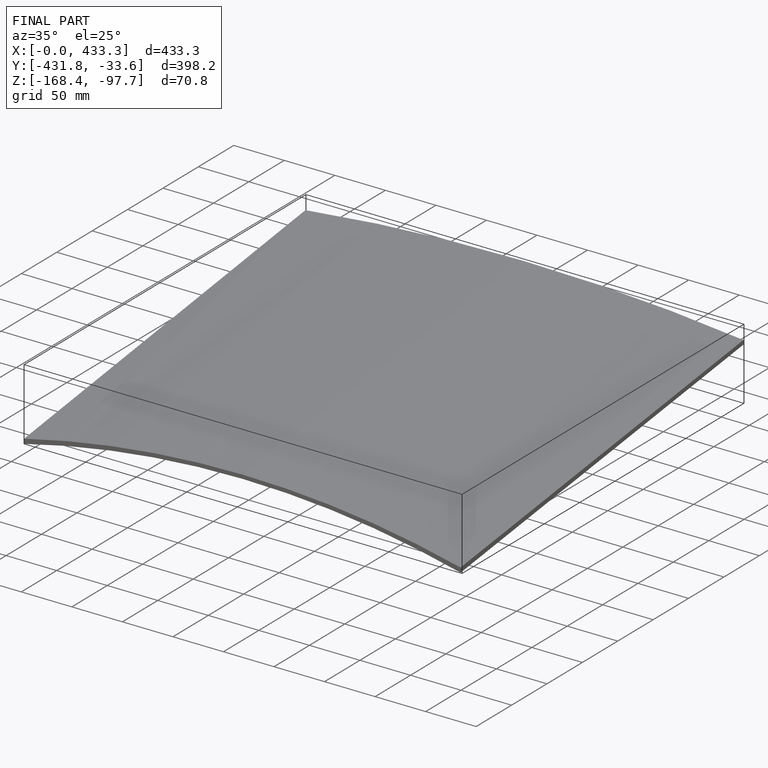
[diagram: finished part — iso view with bounding-box wireframe]
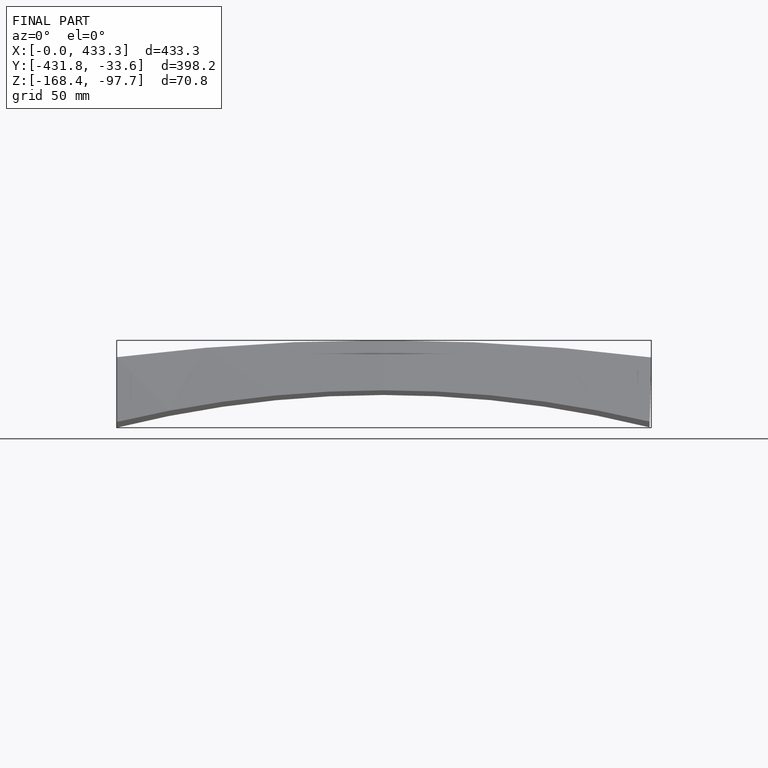
[diagram: finished part — front view with bounding-box wireframe]
